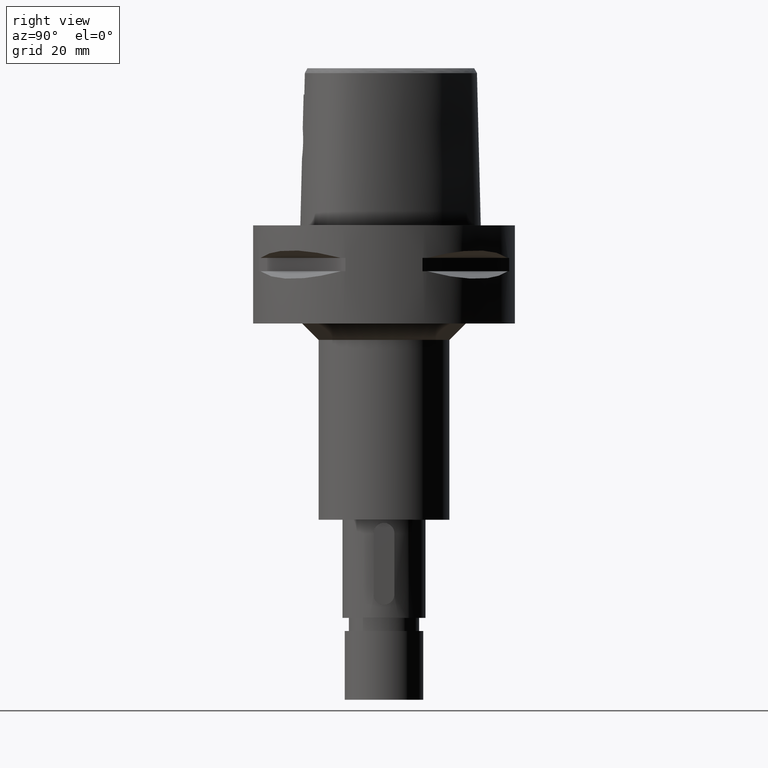
[diagram: clean part render]
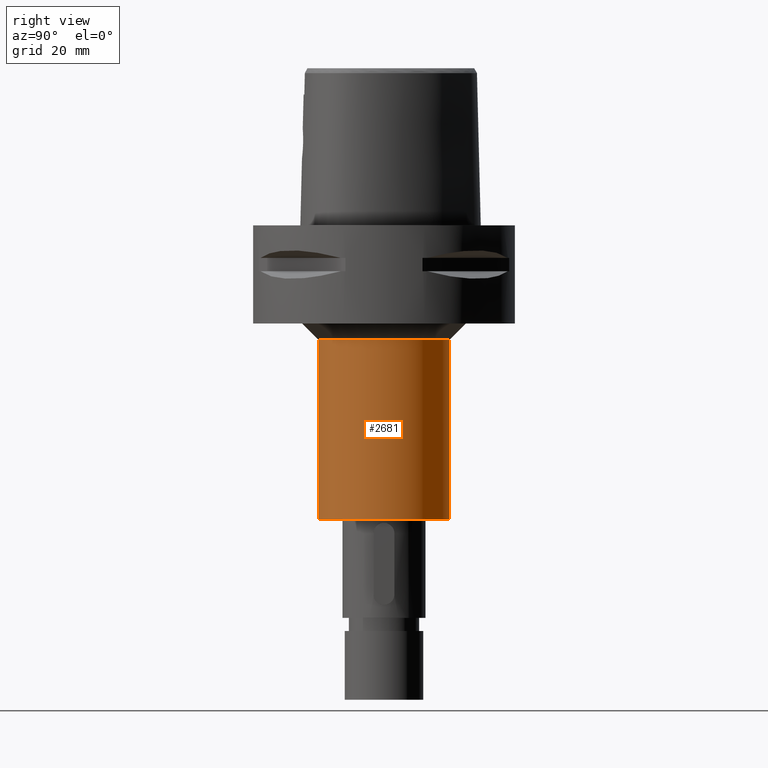
[diagram: same view with one face highlighted and labeled with its STEP entity id]
A machine part, right view. The second image highlights one B-rep face of the part: STEP entity #2681.
In plain terms, the highlighted cylindrical surface (partial cylindrical patch) has radius 20 mm, axis along (0, 0, -1).
Its self-contained STEP definition (entity closure, byte-faithful):
#580=CARTESIAN_POINT('',(0.E0,0.E0,-3.5E1));
#581=DIRECTION('',(0.E0,0.E0,-1.E0));
#582=DIRECTION('',(0.E0,1.E0,0.E0));
#583=AXIS2_PLACEMENT_3D('',#580,#581,#582);
#603=DIRECTION('',(0.E0,0.E0,-1.E0));
#604=VECTOR('',#603,5.5E1);
#605=CARTESIAN_POINT('',(0.E0,-2.E1,-3.5E1));
#606=LINE('',#605,#604);
#610=DIRECTION('',(0.E0,0.E0,-1.E0));
#611=VECTOR('',#610,5.5E1);
#612=CARTESIAN_POINT('',(0.E0,2.E1,-3.5E1));
#613=LINE('',#612,#611);
#625=CARTESIAN_POINT('',(0.E0,1.313433692086E-14,-9.E1));
#626=DIRECTION('',(0.E0,0.E0,1.E0));
#627=DIRECTION('',(0.E0,-1.E0,0.E0));
#628=AXIS2_PLACEMENT_3D('',#625,#626,#627);
#1663=CARTESIAN_POINT('',(0.E0,2.E1,-3.5E1));
#1664=VERTEX_POINT('',#1663);
#1665=CARTESIAN_POINT('',(0.E0,-2.E1,-3.5E1));
#1666=VERTEX_POINT('',#1665);
#1667=CARTESIAN_POINT('',(0.E0,2.E1,-9.E1));
#1668=VERTEX_POINT('',#1667);
#1669=CARTESIAN_POINT('',(0.E0,-2.E1,-9.E1));
#1670=VERTEX_POINT('',#1669);
#2669=CARTESIAN_POINT('',(0.E0,1.313433692086E-14,7.25E0));
#2670=DIRECTION('',(0.E0,0.E0,-1.E0));
#2671=DIRECTION('',(0.E0,-1.E0,0.E0));
#2672=AXIS2_PLACEMENT_3D('',#2669,#2670,#2671);
#2673=CYLINDRICAL_SURFACE('',#2672,2.E1);
#2674=ORIENTED_EDGE('',*,*,#2659,.T.);
#2676=ORIENTED_EDGE('',*,*,#2675,.F.);
#2677=ORIENTED_EDGE('',*,*,#2662,.F.);
#2678=ORIENTED_EDGE('',*,*,#2633,.F.);
#2679=EDGE_LOOP('',(#2674,#2676,#2677,#2678));
#2680=FACE_OUTER_BOUND('',#2679,.F.);
#584=CIRCLE('',#583,2.E1);
#629=CIRCLE('',#628,2.E1);
#2633=EDGE_CURVE('',#1664,#1666,#584,.T.);
#2659=EDGE_CURVE('',#1664,#1668,#613,.T.);
#2662=EDGE_CURVE('',#1666,#1670,#606,.T.);
#2675=EDGE_CURVE('',#1670,#1668,#629,.T.);
#2681=ADVANCED_FACE('',(#2680),#2673,.T.);